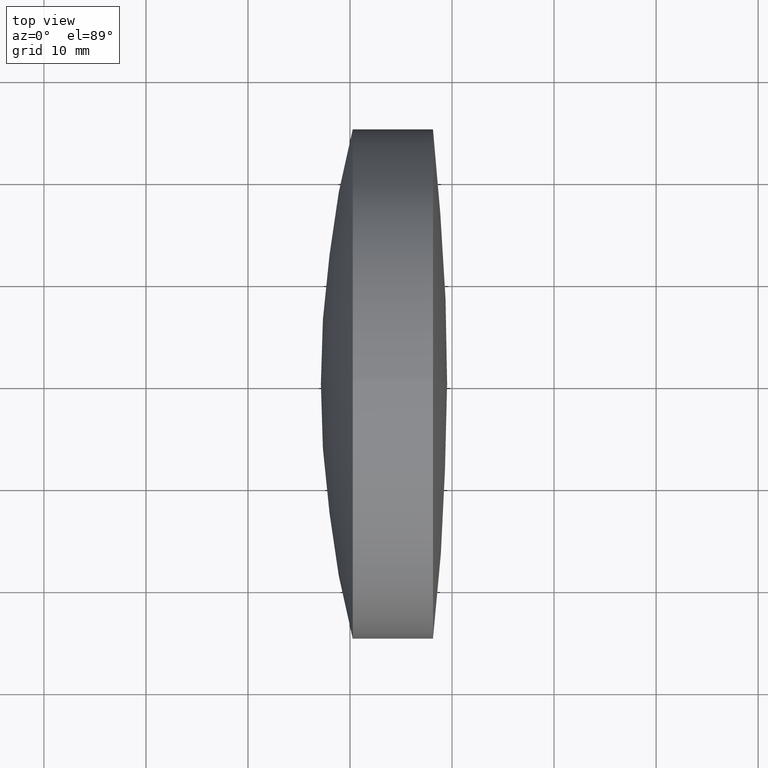
[diagram: clean part render]
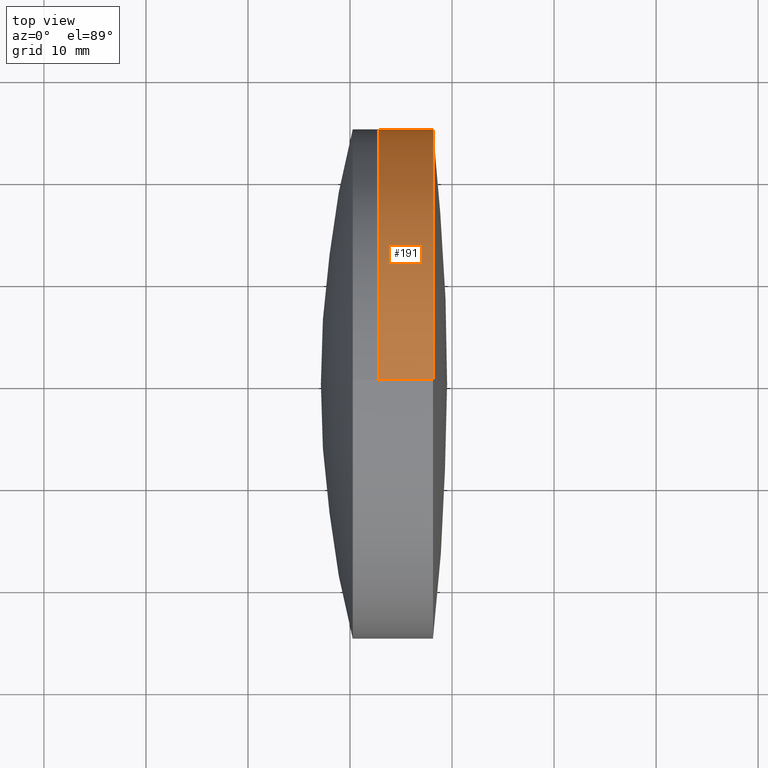
[diagram: same view with one face highlighted and labeled with its STEP entity id]
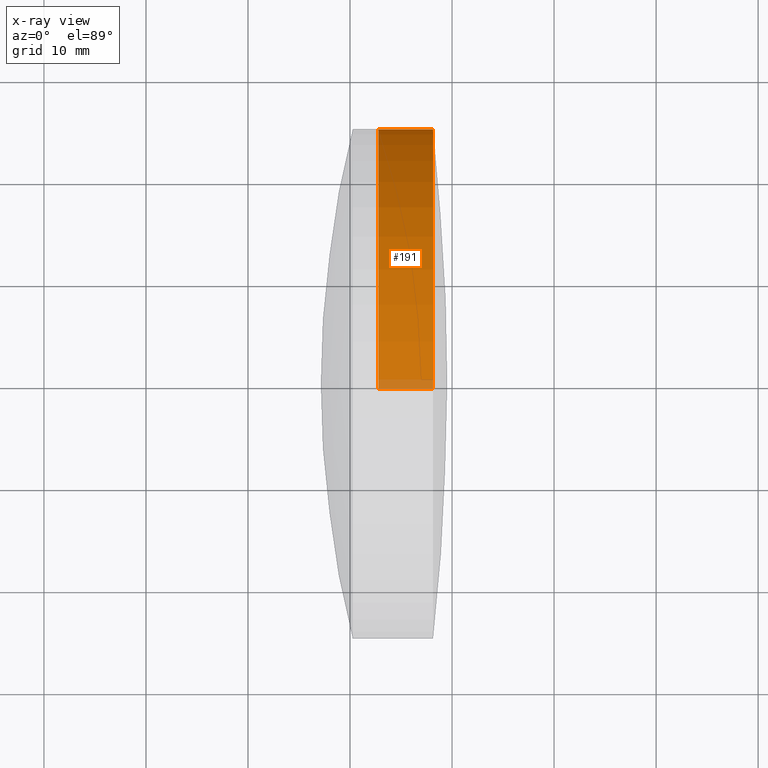
[diagram: x-ray of the same camera — body ghosted, the highlighted face saturated]
A machine part, top view. The second image highlights one B-rep face of the part: STEP entity #191.
The next image is the same camera in x-ray: the body ghosted, the highlighted face saturated — about 3% of this face is hidden behind the body in this view.
In plain terms, the highlighted cylindrical surface (partial cylindrical patch) has radius 25 mm, axis along (-1, -0, -0).
Its self-contained STEP definition (entity closure, byte-faithful):
#14 = EDGE_LOOP ( 'NONE', ( #250, #194, #217, #342 ) ) ;
#44 = CARTESIAN_POINT ( 'NONE',  ( 232.7655238104919100, 3.061616997868378700E-015, -24.99999999999995400 ) ) ;
#46 = LINE ( 'NONE', #238, #182 ) ;
#56 = DIRECTION ( 'NONE',  ( 0.0000000000000000000, 0.0000000000000000000, 1.000000000000000000 ) ) ;
#57 = VECTOR ( 'NONE', #156, 1000.000000000000000 ) ;
#60 = CARTESIAN_POINT ( 'NONE',  ( 238.1292022998895300, 0.0000000000000000000, 0.0000000000000000000 ) ) ;
#63 = DIRECTION ( 'NONE',  ( -1.000000000000000000, -0.0000000000000000000, -0.0000000000000000000 ) ) ;
#65 = DIRECTION ( 'NONE',  ( 0.0000000000000000000, 0.0000000000000000000, 1.000000000000000000 ) ) ;
#67 = CARTESIAN_POINT ( 'NONE',  ( -0.5519199926577972300, 0.0000000000000000000, 0.0000000000000000000 ) ) ;
#72 = EDGE_CURVE ( 'NONE', #260, #272, #74, .T. ) ;
#74 = CIRCLE ( 'NONE', #221, 24.99999999999997200 ) ;
#76 = DIRECTION ( 'NONE',  ( -1.000000000000000000, -0.0000000000000000000, -0.0000000000000000000 ) ) ;
#112 = CYLINDRICAL_SURFACE ( 'NONE', #170, 24.99999999999995000 ) ;
#118 = VERTEX_POINT ( 'NONE', #290 ) ;
#138 = LINE ( 'NONE', #157, #57 ) ;
#154 = CARTESIAN_POINT ( 'NONE',  ( 232.7655238104919100, 0.0000000000000000000, 24.99999999999996100 ) ) ;
#156 = DIRECTION ( 'NONE',  ( -1.000000000000000000, -0.0000000000000000000, -0.0000000000000000000 ) ) ;
#157 = CARTESIAN_POINT ( 'NONE',  ( -0.5519199926577972300, 3.061616997868376700E-015, -24.99999999999995000 ) ) ;
#166 = DIRECTION ( 'NONE',  ( 0.0000000000000000000, 0.0000000000000000000, 1.000000000000000000 ) ) ;
#170 = AXIS2_PLACEMENT_3D ( 'NONE', #67, #76, #56 ) ;
#182 = VECTOR ( 'NONE', #286, 1000.000000000000000 ) ;
#183 = EDGE_CURVE ( 'NONE', #118, #274, #307, .T. ) ;
#191 = ADVANCED_FACE ( 'NONE', ( #264 ), #112, .T. ) ;
#194 = ORIENTED_EDGE ( 'NONE', *, *, #269, .T. ) ;
#213 = DIRECTION ( 'NONE',  ( -1.000000000000000000, -0.0000000000000000000, -0.0000000000000000000 ) ) ;
#217 = ORIENTED_EDGE ( 'NONE', *, *, #72, .F. ) ;
#219 = CARTESIAN_POINT ( 'NONE',  ( 238.1292022998895300, 3.061616997868375200E-015, -24.99999999999992900 ) ) ;
#221 = AXIS2_PLACEMENT_3D ( 'NONE', #281, #213, #166 ) ;
#238 = CARTESIAN_POINT ( 'NONE',  ( -0.5519199926577972300, 0.0000000000000000000, 24.99999999999995000 ) ) ;
#250 = ORIENTED_EDGE ( 'NONE', *, *, #183, .T. ) ;
#260 = VERTEX_POINT ( 'NONE', #154 ) ;
#264 = FACE_OUTER_BOUND ( 'NONE', #14, .T. ) ;
#269 = EDGE_CURVE ( 'NONE', #274, #272, #138, .T. ) ;
#272 = VERTEX_POINT ( 'NONE', #44 ) ;
#274 = VERTEX_POINT ( 'NONE', #219 ) ;
#281 = CARTESIAN_POINT ( 'NONE',  ( 232.7655238104919100, 0.0000000000000000000, 0.0000000000000000000 ) ) ;
#286 = DIRECTION ( 'NONE',  ( -1.000000000000000000, -0.0000000000000000000, -0.0000000000000000000 ) ) ;
#290 = CARTESIAN_POINT ( 'NONE',  ( 238.1292022998895300, 0.0000000000000000000, 24.99999999999992900 ) ) ;
#307 = CIRCLE ( 'NONE', #339, 24.99999999999992900 ) ;
#310 = EDGE_CURVE ( 'NONE', #118, #260, #46, .T. ) ;
#339 = AXIS2_PLACEMENT_3D ( 'NONE', #60, #63, #65 ) ;
#342 = ORIENTED_EDGE ( 'NONE', *, *, #310, .F. ) ;